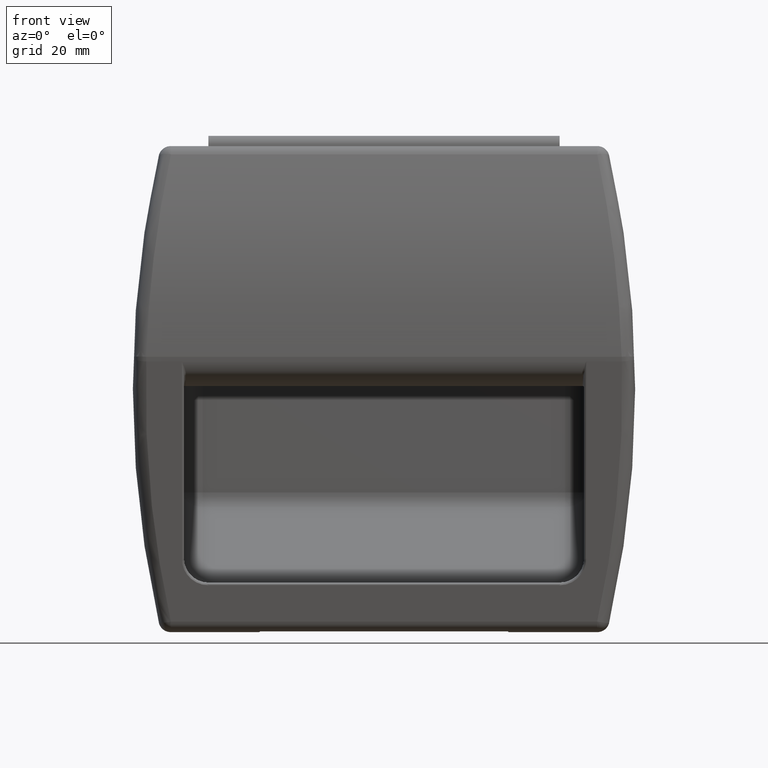
[diagram: clean part render]
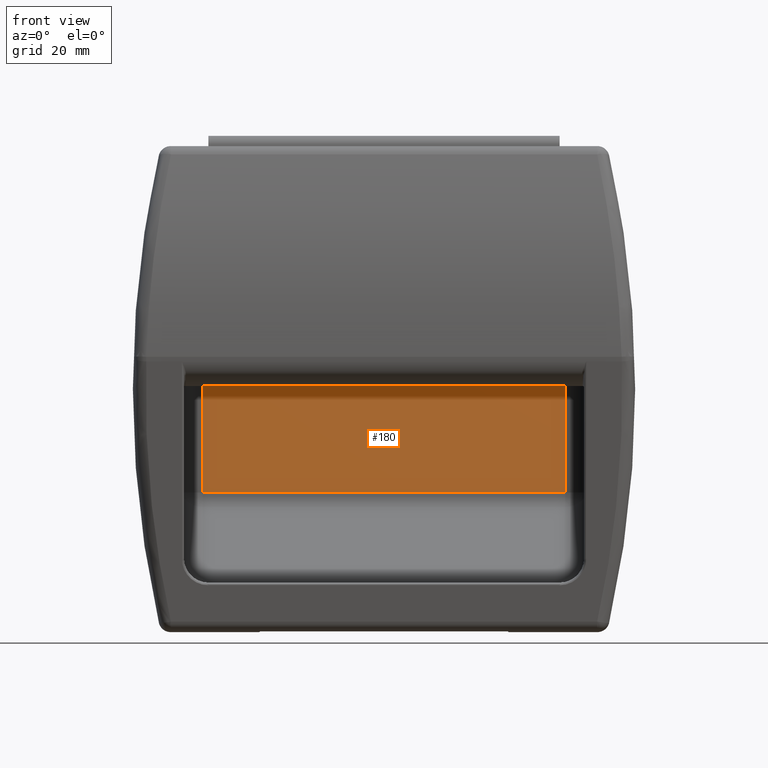
[diagram: same view with one face highlighted and labeled with its STEP entity id]
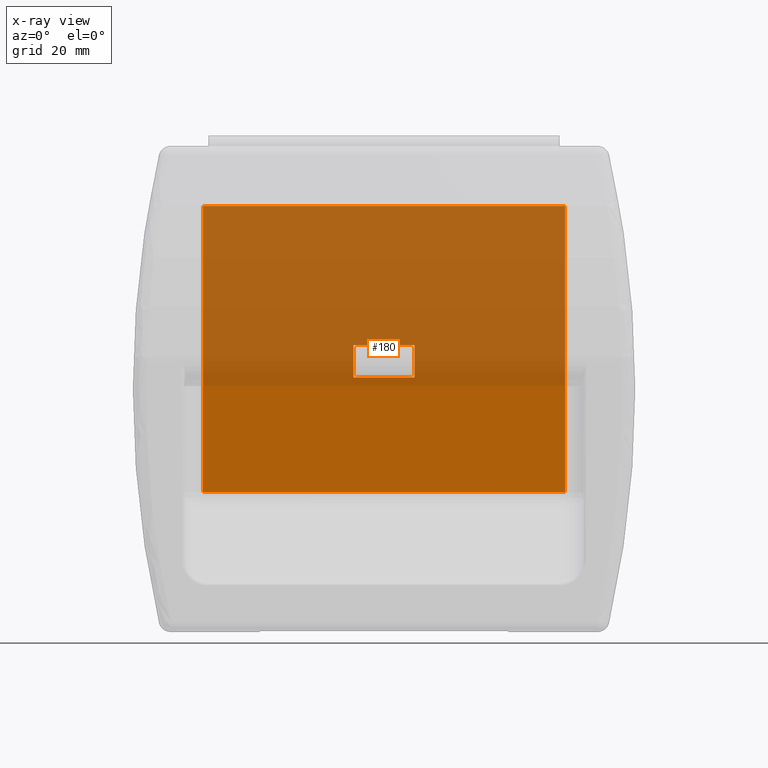
[diagram: x-ray of the same camera — body ghosted, the highlighted face saturated]
A machine part, front view. The second image highlights one B-rep face of the part: STEP entity #180.
The next image is the same camera in x-ray: the body ghosted, the highlighted face saturated — about 62% of this face is hidden behind the body in this view.
In plain terms, the highlighted planar face has unit normal (0, 1, 0).
Its self-contained STEP definition (entity closure, byte-faithful):
#180=ADVANCED_FACE('',(#1164,#1165),#1163,.F.);
#1163=PLANE('',#8062);
#1164=FACE_OUTER_BOUND('',#8063,.T.);
#1165=FACE_BOUND('',#8064,.T.);
#8059=CARTESIAN_POINT('',(-5.32200000000E+001,3.50000000000E+001,-3.38084886697E+001));
#8060=DIRECTION('',(0.00000000000E+000,1.00000000000E+000,0.00000000000E+000));
#8061=DIRECTION('',(0.00000000000E+000,-0.00000000000E+000,1.00000000000E+000));
#8062=AXIS2_PLACEMENT_3D('',#8059,#8060,#8061);
#8063=EDGE_LOOP('',(#15200,#15201,#15202,#15203));
#8064=EDGE_LOOP('',(#15204,#15205,#15206,#15207));
#15200=ORIENTED_EDGE('',*,*,#18728,.F.);
#15201=ORIENTED_EDGE('',*,*,#18729,.T.);
#15202=ORIENTED_EDGE('',*,*,#18730,.F.);
#15203=ORIENTED_EDGE('',*,*,#18731,.F.);
#15204=ORIENTED_EDGE('',*,*,#18722,.T.);
#15205=ORIENTED_EDGE('',*,*,#18732,.F.);
#15206=ORIENTED_EDGE('',*,*,#18717,.T.);
#15207=ORIENTED_EDGE('',*,*,#18713,.T.);
#18713=EDGE_CURVE('',#21072,#21073,#21074,.T.);
#18717=EDGE_CURVE('',#21100,#21072,#21101,.T.);
#18722=EDGE_CURVE('',#21073,#21127,#21134,.T.);
#18728=EDGE_CURVE('',#21174,#21175,#21176,.T.);
#18729=EDGE_CURVE('',#21174,#21182,#21183,.T.);
#18730=EDGE_CURVE('',#21189,#21182,#21190,.T.);
#18731=EDGE_CURVE('',#21175,#21189,#21196,.T.);
#18732=EDGE_CURVE('',#21100,#21127,#21202,.T.);
#21072=VERTEX_POINT('',#32579);
#21073=VERTEX_POINT('',#32580);
#21074=LINE('',#32581,#32582);
#21100=VERTEX_POINT('',#32595);
#21101=LINE('',#32596,#32597);
#21127=VERTEX_POINT('',#32610);
#21134=LINE('',#32614,#32615);
#21174=VERTEX_POINT('',#32636);
#21175=VERTEX_POINT('',#32637);
#21176=LINE('',#32638,#32639);
#21182=VERTEX_POINT('',#32641);
#21183=LINE('',#32642,#32643);
#21189=VERTEX_POINT('',#32645);
#21190=LINE('',#32646,#32647);
#21196=LINE('',#32649,#32650);
#21202=LINE('',#32652,#32653);
#32579=CARTESIAN_POINT('',(-7.49807091839E+000,3.50000000000E+001,1.29844390696E+000));
#32580=CARTESIAN_POINT('',(-7.49807091839E+000,3.50000000000E+001,9.29837164419E+000));
#32581=CARTESIAN_POINT('',(-7.49807091839E+000,3.50000000000E+001,1.29844390696E+000));
#32582=VECTOR('',#32583,7.99992773723E+000);
#32583=DIRECTION('',(0.00000000000E+000,0.00000000000E+000,1.00000000000E+000));
#32595=CARTESIAN_POINT('',(7.49807091839E+000,3.50000000000E+001,1.29844390696E+000));
#32596=CARTESIAN_POINT('',(7.49807091839E+000,3.50000000000E+001,1.29844390696E+000));
#32597=VECTOR('',#32598,1.49961418368E+001);
#32598=DIRECTION('',(-1.00000000000E+000,0.00000000000E+000,0.00000000000E+000));
#32610=CARTESIAN_POINT('',(7.49807091839E+000,3.50000000000E+001,9.29837164419E+000));
#32614=CARTESIAN_POINT('',(-7.49807091839E+000,3.50000000000E+001,9.29837164419E+000));
#32615=VECTOR('',#32616,1.49961418368E+001);
#32616=DIRECTION('',(1.00000000000E+000,0.00000000000E+000,0.00000000000E+000));
#32636=CARTESIAN_POINT('',(4.43500000000E+001,3.50000000000E+001,-2.67986260634E+001));
#32637=CARTESIAN_POINT('',(-4.43500000000E+001,3.50000000000E+001,-2.67986260634E+001));
#32638=CARTESIAN_POINT('',(4.43500000000E+001,3.50000000000E+001,-2.67986260634E+001));
#32639=VECTOR('',#32640,8.87000000000E+001);
#32640=DIRECTION('',(-1.00000000000E+000,0.00000000000E+000,0.00000000000E+000));
#32641=CARTESIAN_POINT('',(4.43500000000E+001,3.50000000000E+001,4.33000000000E+001));
#32642=CARTESIAN_POINT('',(4.43500000000E+001,3.50000000000E+001,-2.67986260634E+001));
#32643=VECTOR('',#32644,7.00986260634E+001);
#32644=DIRECTION('',(0.00000000000E+000,0.00000000000E+000,1.00000000000E+000));
#32645=CARTESIAN_POINT('',(-4.43500000000E+001,3.50000000000E+001,4.33000000000E+001));
#32646=CARTESIAN_POINT('',(-4.43500000000E+001,3.50000000000E+001,4.33000000000E+001));
#32647=VECTOR('',#32648,8.87000000000E+001);
#32648=DIRECTION('',(1.00000000000E+000,0.00000000000E+000,0.00000000000E+000));
#32649=CARTESIAN_POINT('',(-4.43500000000E+001,3.50000000000E+001,-2.67986260634E+001));
#32650=VECTOR('',#32651,7.00986260634E+001);
#32651=DIRECTION('',(0.00000000000E+000,0.00000000000E+000,1.00000000000E+000));
#32652=CARTESIAN_POINT('',(7.49807091839E+000,3.50000000000E+001,1.29844390696E+000));
#32653=VECTOR('',#32654,7.99992773723E+000);
#32654=DIRECTION('',(0.00000000000E+000,0.00000000000E+000,1.00000000000E+000));